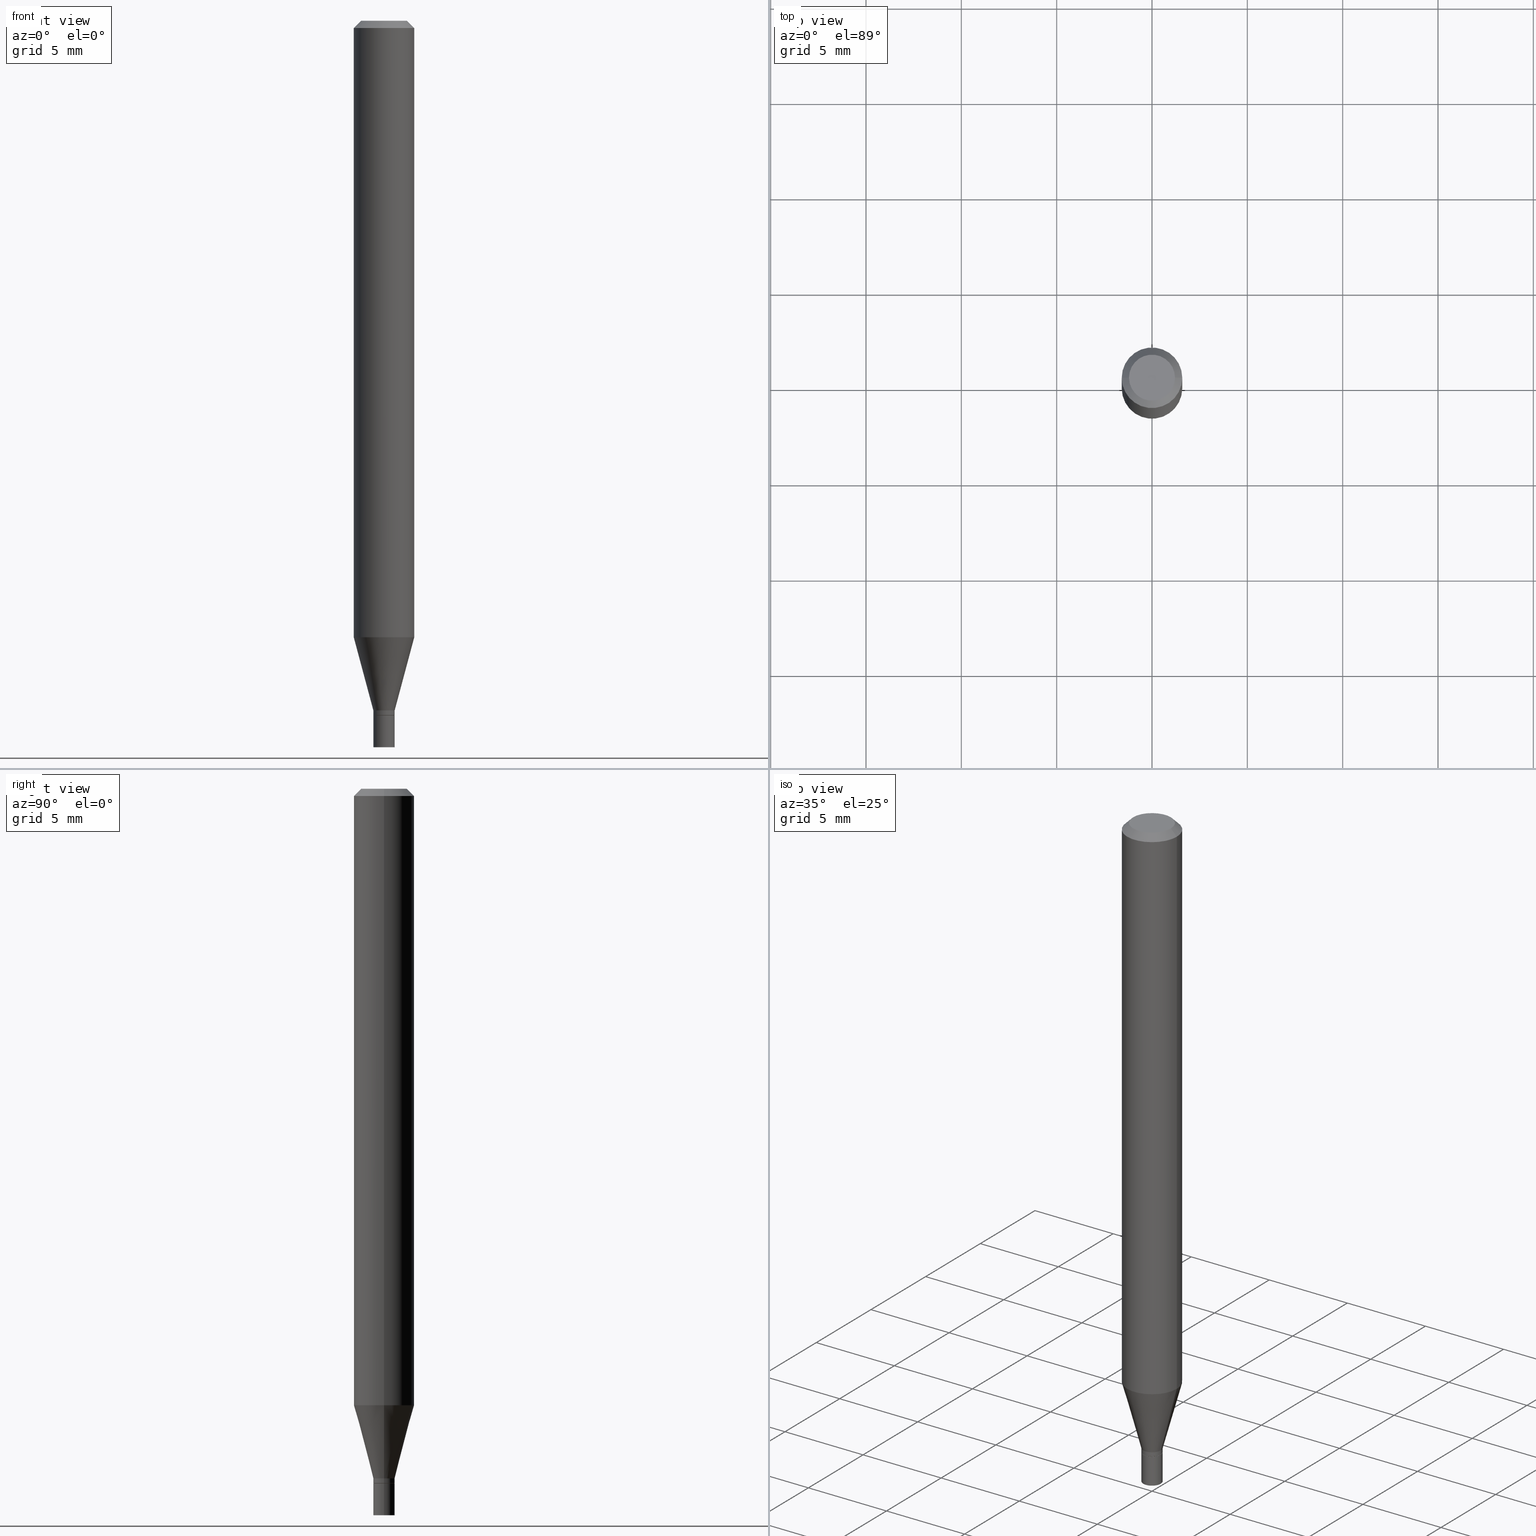
[diagram: canonical four-view strip — front | top / right | iso, engineering-drawing reading convention]
A machine part, canonical four-view strip (front | top / right | iso — engineering-drawing reading convention). The complete STEP part file that produces these views, byte-faithful:
ISO-10303-21;
HEADER;
FILE_DESCRIPTION (( 'STEP AP203' ),
    '1' );
FILE_NAME ('00411.STEP',
    '2024-03-19T21:12:06',
    ( '' ),
    ( '' ),
    'SwSTEP 2.0',
    'SolidWorks 2023',
    '' );
FILE_SCHEMA (( 'CONFIG_CONTROL_DESIGN' ));
ENDSEC;

DATA;
#1 = EDGE_LOOP ( 'NONE', ( #235, #85, #312, #355 ) ) ;
#2 = VECTOR ( 'NONE', #23, 39.37007874015748143 ) ;
#3 = PERSON_AND_ORGANIZATION ( #267, #266 ) ;
#4 = LOCAL_TIME ( 17, 12, 6.000000000000000000, #320 ) ;
#5 = ORIENTED_EDGE ( 'NONE', *, *, #73, .F. ) ;
#6 = DIRECTION ( 'NONE',  ( -2.445468806185136597E-29, 3.491481338843145583E-15, 1.000000000000000000 ) ) ;
#7 = CARTESIAN_POINT ( 'NONE',  ( 3.482347580007634944E-29, -4.971869426512640168E-15, -1.424000000000000155 ) ) ;
#8 = CARTESIAN_POINT ( 'NONE',  ( 3.482347580007634944E-29, -4.971869426512640168E-15, -1.424000000000000155 ) ) ;
#9 = ORIENTED_EDGE ( 'NONE', *, *, #431, .T. ) ;
#10 = AXIS2_PLACEMENT_3D ( 'NONE', #445, #214, #446 ) ;
#11 = CARTESIAN_POINT ( 'NONE',  ( 3.506802268069485929E-29, -5.006784239901070239E-15, -1.434000000000000163 ) ) ;
#12 = AXIS2_PLACEMENT_3D ( 'NONE', #258, #359, #212 ) ;
#13 = PLANE ( 'NONE',  #176 ) ;
#14 = DIRECTION ( 'NONE',  ( -2.445468806185136597E-29, 3.491481338843145583E-15, 1.000000000000000000 ) ) ;
#15 = CARTESIAN_POINT ( 'NONE',  ( -0.02199999999999992240, -4.815550024645417988E-15, -1.424000000000000155 ) ) ;
#16 = EDGE_CURVE ( 'NONE', #274, #440, #358, .T. ) ;
#17 = DIRECTION ( 'NONE',  ( -2.445468806185136597E-29, 3.491481338843145583E-15, 1.000000000000000000 ) ) ;
#18 = DIRECTION ( 'NONE',  ( 1.000000000000000000, -6.982962677686266711E-15, 0.000000000000000000 ) ) ;
#19 = CARTESIAN_POINT ( 'NONE',  ( 3.506802268069485929E-29, -5.006784239901070239E-15, -1.434000000000000163 ) ) ;
#20 = ORIENTED_EDGE ( 'NONE', *, *, #295, .F. ) ;
#21 =( CONVERSION_BASED_UNIT ( 'INCH', #163 ) LENGTH_UNIT ( ) NAMED_UNIT ( #46 ) );
#22 = FACE_OUTER_BOUND ( 'NONE', #194, .T. ) ;
#23 = DIRECTION ( 'NONE',  ( -2.445468806185136877E-29, 3.491481338843145188E-15, 1.000000000000000000 ) ) ;
#24 = CARTESIAN_POINT ( 'NONE',  ( 0.06250000000000000000, -4.888073874380388472E-16, -0.01499999999999999944 ) ) ;
#25 = PRODUCT_DEFINITION_SHAPE ( 'NONE', 'NONE',  #173 ) ;
#26 = ORIENTED_EDGE ( 'NONE', *, *, #110, .F. ) ;
#27 = APPROVAL_ROLE ( '' ) ;
#28 = ORIENTED_EDGE ( 'NONE', *, *, #262, .F. ) ;
#29 = APPROVAL ( #175, 'UNSPECIFIED' ) ;
#30 = APPLICATION_PROTOCOL_DEFINITION ( 'international standard', 'config_control_design', 1994, #139 ) ;
#31 = CONICAL_SURFACE ( 'NONE', #112, 0.02149999999999999481, 0.7853981633974739252 ) ;
#32 = COORDINATED_UNIVERSAL_TIME_OFFSET ( 5, 0, .BEHIND. ) ;
#33 = ORIENTED_EDGE ( 'NONE', *, *, #16, .F. ) ;
#34 = PERSON_AND_ORGANIZATION ( #267, #266 ) ;
#35 = APPROVAL_STATUS ( 'not_yet_approved' ) ;
#36 = ORIENTED_EDGE ( 'NONE', *, *, #110, .T. ) ;
#37 = EDGE_CURVE ( 'NONE', #440, #274, #190, .T. ) ;
#38 = CIRCLE ( 'NONE', #122, 0.06250000000000000000 ) ;
#39 = DIRECTION ( 'NONE',  ( 1.000000000000000000, -6.982962677686267499E-15, 4.884662768193073002E-29 ) ) ;
#40 = DIRECTION ( 'NONE',  ( -2.445468806185136597E-29, 3.491481338843145583E-15, 1.000000000000000000 ) ) ;
#41 = DIRECTION ( 'NONE',  ( -2.445468806185136597E-29, 3.491481338843145583E-15, 1.000000000000000000 ) ) ;
#42 = AXIS2_PLACEMENT_3D ( 'NONE', #223, #40, #111 ) ;
#43 = CARTESIAN_POINT ( 'NONE',  ( -0.02199999999999999872, -4.965683722215672817E-15, -1.434000000000000163 ) ) ;
#44 = ORIENTED_EDGE ( 'NONE', *, *, #435, .T. ) ;
#45 = DIRECTION ( 'NONE',  ( 1.000000000000000000, -6.982962677686266711E-15, 0.000000000000000000 ) ) ;
#46 = DIMENSIONAL_EXPONENTS ( 1.000000000000000000, 0.000000000000000000, 0.000000000000000000, 0.000000000000000000, 0.000000000000000000, 0.000000000000000000, 0.000000000000000000 ) ;
#47 = DIRECTION ( 'NONE',  ( 1.000000000000000000, -6.982962677686266711E-15, 0.000000000000000000 ) ) ;
#48 = CARTESIAN_POINT ( 'NONE',  ( -3.223020679335594837E-45, 4.601619341103081537E-31, 1.317956160873471783E-16 ) ) ;
#49 = VECTOR ( 'NONE', #226, 39.37007874015748854 ) ;
#50 = CC_DESIGN_APPROVAL ( #128, ( #173 ) ) ;
#51 = ADVANCED_BREP_SHAPE_REPRESENTATION ( '00411', ( #132, #447, #12 ), #441 ) ;
#52 = CARTESIAN_POINT ( 'NONE',  ( 1.536251789091328911E-16, 0.02199999999999499231, -1.434000000000000163 ) ) ;
#53 = EDGE_LOOP ( 'NONE', ( #125, #145, #94, #135 ) ) ;
#54 = EDGE_CURVE ( 'NONE', #318, #278, #335, .T. ) ;
#55 = DIRECTION ( 'NONE',  ( -2.445468806185136877E-29, 3.491481338843145188E-15, 1.000000000000000000 ) ) ;
#56 = DIRECTION ( 'NONE',  ( 1.000000000000000000, -6.982962677686265922E-15, 4.876176775795935793E-29 ) ) ;
#57 = PLANE ( 'NONE',  #409 ) ;
#58 = CYLINDRICAL_SURFACE ( 'NONE', #63, 0.02199999999999999872 ) ;
#59 = AXIS2_PLACEMENT_3D ( 'NONE', #48, #133, #127 ) ;
#60 = EDGE_CURVE ( 'NONE', #440, #245, #91, .T. ) ;
#61 = COORDINATED_UNIVERSAL_TIME_OFFSET ( 5, 0, .BEHIND. ) ;
#62 = PERSON_AND_ORGANIZATION ( #267, #266 ) ;
#63 = AXIS2_PLACEMENT_3D ( 'NONE', #126, #84, #286 ) ;
#64 = PERSON_AND_ORGANIZATION_ROLE ( 'design_supplier' ) ;
#65 = CALENDAR_DATE ( 2024, 19, 3 ) ;
#66 = CC_DESIGN_PERSON_AND_ORGANIZATION_ASSIGNMENT ( #289, #184, ( #173 ) ) ;
#67 = CLOSED_SHELL ( 'NONE', ( #121, #364, #423, #369 ) ) ;
#68 = ORIENTED_EDGE ( 'NONE', *, *, #216, .T. ) ;
#69 = LOCAL_TIME ( 17, 12, 6.000000000000000000, #32 ) ;
#70 = DIRECTION ( 'NONE',  ( -2.445468806185136597E-29, 3.491481338843145583E-15, 1.000000000000000000 ) ) ;
#71 = EDGE_LOOP ( 'NONE', ( #171, #333 ) ) ;
#72 = EDGE_CURVE ( 'NONE', #240, #356, #218, .T. ) ;
#73 = EDGE_CURVE ( 'NONE', #107, #240, #206, .T. ) ;
#74 = CARTESIAN_POINT ( 'NONE',  ( 3.506802268069485929E-29, -5.006784239901070239E-15, -1.434000000000000163 ) ) ;
#75 = VERTEX_POINT ( 'NONE', #456 ) ;
#76 = DIRECTION ( 'NONE',  ( -2.445468806185136597E-29, 3.491481338843145583E-15, 1.000000000000000000 ) ) ;
#77 = CARTESIAN_POINT ( 'NONE',  ( 0.04749999999999999362, -4.035134999187576158E-16, 1.317956160873497667E-16 ) ) ;
#78 = CIRCLE ( 'NONE', #352, 0.02199999999999999872 ) ;
#79 = LINE ( 'NONE', #264, #161 ) ;
#80 = AXIS2_PLACEMENT_3D ( 'NONE', #228, #41, #189 ) ;
#81 = FACE_OUTER_BOUND ( 'NONE', #373, .T. ) ;
#82 = VERTEX_POINT ( 'NONE', #247 ) ;
#83 = CARTESIAN_POINT ( 'NONE',  ( 3.506802268069485929E-29, -5.006784239901070239E-15, -1.434000000000000163 ) ) ;
#84 = DIRECTION ( 'NONE',  ( -2.445468806185136597E-29, 3.491481338843145583E-15, 1.000000000000000000 ) ) ;
#85 = ORIENTED_EDGE ( 'NONE', *, *, #37, .T. ) ;
#86 = VECTOR ( 'NONE', #417, 39.37007874015748143 ) ;
#87 = CIRCLE ( 'NONE', #384, 0.04749999999999999362 ) ;
#88 = DIRECTION ( 'NONE',  ( 1.000000000000000000, -6.982962677686245411E-15, 0.000000000000000000 ) ) ;
#89 = CIRCLE ( 'NONE', #219, 0.02199999999999992240 ) ;
#90 = CC_DESIGN_PERSON_AND_ORGANIZATION_ASSIGNMENT ( #34, #102, ( #179 ) ) ;
#91 = LINE ( 'NONE', #422, #86 ) ;
#92 = DIRECTION ( 'NONE',  ( -2.445468806185136597E-29, 3.491481338843145583E-15, 1.000000000000000000 ) ) ;
#93 = FACE_OUTER_BOUND ( 'NONE', #265, .T. ) ;
#94 = ORIENTED_EDGE ( 'NONE', *, *, #402, .T. ) ;
#95 = DIRECTION ( 'NONE',  ( -2.445468806185136597E-29, 3.491481338843145583E-15, 1.000000000000000000 ) ) ;
#96 = CARTESIAN_POINT ( 'NONE',  ( -0.02199999999999992240, -4.848719097364427345E-15, -1.433500000000000218 ) ) ;
#97 = EDGE_CURVE ( 'NONE', #278, #466, #387, .T. ) ;
#98 = VECTOR ( 'NONE', #370, 39.37007874015748854 ) ;
#99 = SECURITY_CLASSIFICATION_LEVEL ( 'unclassified' ) ;
#100 = DATE_AND_TIME ( #144, #328 ) ;
#101 = ADVANCED_FACE ( 'NONE', ( #170 ), #57, .F. ) ;
#102 = PERSON_AND_ORGANIZATION_ROLE ( 'design_owner' ) ;
#103 = AXIS2_PLACEMENT_3D ( 'NONE', #450, #157, #120 ) ;
#104 = CIRCLE ( 'NONE', #336, 0.02199999999999999872 ) ;
#105 = APPROVAL_STATUS ( 'not_yet_approved' ) ;
#106 = EDGE_LOOP ( 'NONE', ( #248, #166, #362, #26 ) ) ;
#107 = VERTEX_POINT ( 'NONE', #313 ) ;
#108 = APPROVAL_DATE_TIME ( #217, #128 ) ;
#109 = CARTESIAN_POINT ( 'NONE',  ( -0.02199999999999992240, -4.407799809211612796E-15, -1.424000000000000155 ) ) ;
#110 = EDGE_CURVE ( 'NONE', #278, #318, #140, .T. ) ;
#111 = DIRECTION ( 'NONE',  ( 1.000000000000000000, -6.982962677686266711E-15, 4.876176775795935793E-29 ) ) ;
#112 = AXIS2_PLACEMENT_3D ( 'NONE', #74, #70, #45 ) ;
#113 = CARTESIAN_POINT ( 'NONE',  ( 3.505579533666394249E-29, -5.005038499231650313E-15, -1.433500000000000218 ) ) ;
#114 = CIRCLE ( 'NONE', #59, 0.04749999999999999362 ) ;
#115 = DIRECTION ( 'NONE',  ( 1.000000000000000000, -6.982962677686245411E-15, 0.000000000000000000 ) ) ;
#116 = ORIENTED_EDGE ( 'NONE', *, *, #211, .T. ) ;
#117 = CARTESIAN_POINT ( 'NONE',  ( 3.576687321579069994E-29, -5.368277968210015545E-15, -1.500000000000000222 ) ) ;
#118 = ORIENTED_EDGE ( 'NONE', *, *, #345, .T. ) ;
#119 = DIRECTION ( 'NONE',  ( 1.000000000000000000, -6.982962677686269866E-15, 0.000000000000000000 ) ) ;
#120 = DIRECTION ( 'NONE',  ( -1.000000000000000000, 6.982962677686266711E-15, 0.000000000000000000 ) ) ;
#121 = ADVANCED_FACE ( 'NONE', ( #246 ), #389, .T. ) ;
#122 = AXIS2_PLACEMENT_3D ( 'NONE', #305, #448, #299 ) ;
#123 = DIRECTION ( 'NONE',  ( -1.000000000000000000, 6.982962677686265922E-15, -4.876176775795935793E-29 ) ) ;
#124 = CIRCLE ( 'NONE', #376, 0.02149999999999999481 ) ;
#125 = ORIENTED_EDGE ( 'NONE', *, *, #465, .F. ) ;
#126 = CARTESIAN_POINT ( 'NONE',  ( 0.000000000000000000, 0.000000000000000000, 0.000000000000000000 ) ) ;
#127 = DIRECTION ( 'NONE',  ( 1.000000000000000000, -6.982962677686267499E-15, 4.884662768193073002E-29 ) ) ;
#128 = APPROVAL ( #35, 'UNSPECIFIED' ) ;
#129 = ORIENTED_EDGE ( 'NONE', *, *, #73, .T. ) ;
#130 =( LENGTH_UNIT ( ) NAMED_UNIT ( * ) SI_UNIT ( $, .METRE. ) );
#131 = VECTOR ( 'NONE', #341, 39.37007874015748143 ) ;
#132 = MANIFOLD_SOLID_BREP ( 'Body-Move/Copy2[1]', #67 ) ;
#133 = DIRECTION ( 'NONE',  ( -2.445468806185136597E-29, 3.491481338843145583E-15, 1.000000000000000000 ) ) ;
#134 = CYLINDRICAL_SURFACE ( 'NONE', #152, 0.06250000000000000000 ) ;
#135 = ORIENTED_EDGE ( 'NONE', *, *, #444, .F. ) ;
#136 = CARTESIAN_POINT ( 'NONE',  ( -0.06250000000000000000, -1.804166302005195836E-15, -0.01499999999999999944 ) ) ;
#137 = ADVANCED_FACE ( 'NONE', ( #22 ), #134, .T. ) ;
#138 = PERSON_AND_ORGANIZATION ( #267, #266 ) ;
#139 = APPLICATION_CONTEXT ( 'configuration controlled 3d designs of mechanical parts and assemblies' ) ;
#140 = CIRCLE ( 'NONE', #201, 0.06250000000000000000 ) ;
#141 = SECURITY_CLASSIFICATION ( '', '', #99 ) ;
#142 = DATE_AND_TIME ( #324, #360 ) ;
#143 = ADVANCED_FACE ( 'NONE', ( #81 ), #234, .T. ) ;
#144 = CALENDAR_DATE ( 2024, 19, 3 ) ;
#145 = ORIENTED_EDGE ( 'NONE', *, *, #383, .T. ) ;
#146 = VERTEX_POINT ( 'NONE', #77 ) ;
#147 = CARTESIAN_POINT ( 'NONE',  ( 0.02199999999999992240, -5.125494605421737215E-15, -1.424000000000000155 ) ) ;
#148 = DIRECTION ( 'NONE',  ( -2.445468806185136597E-29, 3.491481338843145583E-15, 1.000000000000000000 ) ) ;
#149 = DIRECTION ( 'NONE',  ( -2.445468806185136597E-29, 3.491481338843145583E-15, 1.000000000000000000 ) ) ;
#150 = ORIENTED_EDGE ( 'NONE', *, *, #262, .T. ) ;
#151 = DIRECTION ( 'NONE',  ( -2.445468806185136597E-29, 3.491481338843145583E-15, 1.000000000000000000 ) ) ;
#152 = AXIS2_PLACEMENT_3D ( 'NONE', #250, #14, #281 ) ;
#153 = VECTOR ( 'NONE', #334, 39.37007874015748143 ) ;
#154 = CC_DESIGN_APPROVAL ( #459, ( #141 ) ) ;
#155 = CARTESIAN_POINT ( 'NONE',  ( 0.02199999999999999872, -5.160409418810168075E-15, -1.434000000000000163 ) ) ;
#156 = LINE ( 'NONE', #229, #428 ) ;
#157 = DIRECTION ( 'NONE',  ( 2.445468806185136597E-29, -3.491481338843145583E-15, -1.000000000000000000 ) ) ;
#158 = ADVANCED_FACE ( 'NONE', ( #197 ), #263, .T. ) ;
#159 = CARTESIAN_POINT ( 'NONE',  ( -3.223020679335594837E-45, 4.601619341103081537E-31, 1.317956160873471783E-16 ) ) ;
#160 = CARTESIAN_POINT ( 'NONE',  ( -0.04749999999999999362, 3.578768372314212971E-16, 1.317956160873447624E-16 ) ) ;
#161 = VECTOR ( 'NONE', #301, 39.37007874015748143 ) ;
#162 = FACE_OUTER_BOUND ( 'NONE', #227, .T. ) ;
#163 = LENGTH_MEASURE_WITH_UNIT ( LENGTH_MEASURE( 0.02539999999999999897 ), #130 );
#164 = CARTESIAN_POINT ( 'NONE',  ( 3.506802268069485929E-29, -5.006784239901070239E-15, -1.434000000000000163 ) ) ;
#165 = LINE ( 'NONE', #208, #224 ) ;
#166 = ORIENTED_EDGE ( 'NONE', *, *, #391, .T. ) ;
#167 = DIRECTION ( 'NONE',  ( 2.445468806185136597E-29, -3.491481338843145583E-15, -1.000000000000000000 ) ) ;
#168 = DIRECTION ( 'NONE',  ( 1.000000000000000000, -6.982962677686265922E-15, 4.876176775795936353E-29 ) ) ;
#169 = CONICAL_SURFACE ( 'NONE', #261, 0.02199999999999992240, 0.2617993877991498519 ) ;
#170 = FACE_OUTER_BOUND ( 'NONE', #294, .T. ) ;
#171 = ORIENTED_EDGE ( 'NONE', *, *, #340, .F. ) ;
#172 =( NAMED_UNIT ( * ) PLANE_ANGLE_UNIT ( ) SI_UNIT ( $, .RADIAN. ) );
#173 = PRODUCT_DEFINITION ( 'UNKNOWN', '', #386, #372 ) ;
#174 = MECHANICAL_CONTEXT ( 'NONE', #297, 'mechanical' ) ;
#175 = APPROVAL_STATUS ( 'not_yet_approved' ) ;
#176 = AXIS2_PLACEMENT_3D ( 'NONE', #332, #306, #123 ) ;
#177 = SHAPE_DEFINITION_REPRESENTATION ( #25, #51 ) ;
#178 = DIRECTION ( 'NONE',  ( -2.445468806185136597E-29, 3.491481338843145583E-15, 1.000000000000000000 ) ) ;
#179 = PRODUCT ( '00411', '00411', '', ( #174 ) ) ;
#180 = ORIENTED_EDGE ( 'NONE', *, *, #269, .T. ) ;
#181 = ORIENTED_EDGE ( 'NONE', *, *, #279, .T. ) ;
#182 = APPROVAL_DATE_TIME ( #100, #459 ) ;
#183 = EDGE_LOOP ( 'NONE', ( #118, #311, #33, #28 ) ) ;
#184 = PERSON_AND_ORGANIZATION_ROLE ( 'creator' ) ;
#185 = EDGE_CURVE ( 'NONE', #75, #245, #327, .T. ) ;
#186 = CONICAL_SURFACE ( 'NONE', #277, 0.06250000000000000000, 0.7853981633974439491 ) ;
#187 = VERTEX_POINT ( 'NONE', #160 ) ;
#188 = DIRECTION ( 'NONE',  ( 1.000000000000000000, -6.982962677686266711E-15, 0.000000000000000000 ) ) ;
#189 = DIRECTION ( 'NONE',  ( 1.000000000000000000, -6.982962677686269866E-15, 0.000000000000000000 ) ) ;
#190 = CIRCLE ( 'NONE', #457, 0.02199999999999992240 ) ;
#191 = CIRCLE ( 'NONE', #323, 0.02149999999999999481 ) ;
#192 = LINE ( 'NONE', #15, #49 ) ;
#193 = FACE_OUTER_BOUND ( 'NONE', #53, .T. ) ;
#194 = EDGE_LOOP ( 'NONE', ( #260, #36, #44, #344 ) ) ;
#195 = DIRECTION ( 'NONE',  ( 1.000000000000000000, -6.982962677686262766E-15, 0.000000000000000000 ) ) ;
#196 = CARTESIAN_POINT ( 'NONE',  ( -0.06250000000000001388, -4.000049593777807603E-15, -1.272851942293460548 ) ) ;
#197 = FACE_OUTER_BOUND ( 'NONE', #329, .T. ) ;
#198 = LINE ( 'NONE', #455, #131 ) ;
#199 = ADVANCED_FACE ( 'NONE', ( #193 ), #315, .T. ) ;
#200 = FACE_OUTER_BOUND ( 'NONE', #1, .T. ) ;
#201 = AXIS2_PLACEMENT_3D ( 'NONE', #347, #92, #242 ) ;
#202 = PLANE ( 'NONE',  #353 ) ;
#203 = VECTOR ( 'NONE', #349, 39.37007874015748143 ) ;
#204 = CARTESIAN_POINT ( 'NONE',  ( 0.06250000000000000000, -4.364351673553916694E-16, 3.047610484872459871E-30 ) ) ;
#205 = ORIENTED_EDGE ( 'NONE', *, *, #340, .T. ) ;
#206 = LINE ( 'NONE', #351, #2 ) ;
#207 = ADVANCED_FACE ( 'NONE', ( #200 ), #442, .T. ) ;
#208 = CARTESIAN_POINT ( 'NONE',  ( 0.02199999999999992240, -1.536251789090973184E-16, 1.072758890675101902E-30 ) ) ;
#209 = DIRECTION ( 'NONE',  ( -2.445468806185136597E-29, 3.491481338843145583E-15, 1.000000000000000000 ) ) ;
#210 = LOCAL_TIME ( 17, 12, 6.000000000000000000, #61 ) ;
#211 = EDGE_CURVE ( 'NONE', #466, #371, #38, .T. ) ;
#212 = DIRECTION ( 'NONE',  ( 1.000000000000000000, 0.000000000000000000, 0.000000000000000000 ) ) ;
#213 = DATE_TIME_ROLE ( 'classification_date' ) ;
#214 = DIRECTION ( 'NONE',  ( -2.445468806185136597E-29, 3.491481338843145583E-15, 1.000000000000000000 ) ) ;
#215 = ADVANCED_FACE ( 'NONE', ( #339 ), #307, .T. ) ;
#216 = EDGE_CURVE ( 'NONE', #356, #240, #78, .T. ) ;
#217 = DATE_AND_TIME ( #396, #210 ) ;
#218 = CIRCLE ( 'NONE', #241, 0.02199999999999999872 ) ;
#219 = AXIS2_PLACEMENT_3D ( 'NONE', #416, #17, #249 ) ;
#220 = PERSON_AND_ORGANIZATION ( #267, #266 ) ;
#221 = COORDINATED_UNIVERSAL_TIME_OFFSET ( 5, 0, .BEHIND. ) ;
#222 = ORIENTED_EDGE ( 'NONE', *, *, #97, .T. ) ;
#223 = CARTESIAN_POINT ( 'NONE',  ( 0.000000000000000000, 0.000000000000000000, 0.000000000000000000 ) ) ;
#224 = VECTOR ( 'NONE', #354, 39.37007874015748143 ) ;
#225 = CARTESIAN_POINT ( 'NONE',  ( 3.505579533666394249E-29, -5.005038499231650313E-15, -1.433500000000000218 ) ) ;
#226 = DIRECTION ( 'NONE',  ( -0.2588190451025211281, 5.211531920934547886E-15, 0.9659258262890679791 ) ) ;
#227 = EDGE_LOOP ( 'NONE', ( #366, #20, #401, #116 ) ) ;
#228 = CARTESIAN_POINT ( 'NONE',  ( 3.482347580007634944E-29, -4.971869426512640168E-15, -1.424000000000000155 ) ) ;
#229 = CARTESIAN_POINT ( 'NONE',  ( 0.02199999999999999872, -1.536251789090978361E-16, 1.072758890675105930E-30 ) ) ;
#230 = AXIS2_PLACEMENT_3D ( 'NONE', #225, #300, #437 ) ;
#231 = AXIS2_PLACEMENT_3D ( 'NONE', #244, #310, #283 ) ;
#232 = LINE ( 'NONE', #147, #98 ) ;
#233 = DIRECTION ( 'NONE',  ( 1.000000000000000000, -6.982962677686269866E-15, 0.000000000000000000 ) ) ;
#234 = CYLINDRICAL_SURFACE ( 'NONE', #253, 0.02199999999999992240 ) ;
#235 = ORIENTED_EDGE ( 'NONE', *, *, #60, .F. ) ;
#236 = CARTESIAN_POINT ( 'NONE',  ( 0.02199999999999992240, -5.158663678140746572E-15, -1.433500000000000218 ) ) ;
#237 = EDGE_CURVE ( 'NONE', #75, #318, #232, .T. ) ;
#238 = ORIENTED_EDGE ( 'NONE', *, *, #237, .F. ) ;
#239 = CARTESIAN_POINT ( 'NONE',  ( 3.506802268069485929E-29, -5.006784239901070239E-15, -1.434000000000000163 ) ) ;
#240 = VERTEX_POINT ( 'NONE', #43 ) ;
#241 = AXIS2_PLACEMENT_3D ( 'NONE', #164, #209, #88 ) ;
#242 = DIRECTION ( 'NONE',  ( 1.000000000000000000, -6.982962677686262766E-15, 0.000000000000000000 ) ) ;
#243 = EDGE_LOOP ( 'NONE', ( #365, #9, #150, #434 ) ) ;
#244 = CARTESIAN_POINT ( 'NONE',  ( 3.668203209277705088E-31, -5.237222008264718399E-17, -0.01499999999999999944 ) ) ;
#245 = VERTEX_POINT ( 'NONE', #109 ) ;
#246 = FACE_OUTER_BOUND ( 'NONE', #326, .T. ) ;
#247 = CARTESIAN_POINT ( 'NONE',  ( 0.02199999999999999872, -5.390847187173816013E-15, -1.500000000000000222 ) ) ;
#248 = ORIENTED_EDGE ( 'NONE', *, *, #279, .F. ) ;
#249 = DIRECTION ( 'NONE',  ( 1.000000000000000000, -6.982962677686269866E-15, 0.000000000000000000 ) ) ;
#250 = CARTESIAN_POINT ( 'NONE',  ( 0.000000000000000000, 0.000000000000000000, 0.000000000000000000 ) ) ;
#251 = VERTEX_POINT ( 'NONE', #436 ) ;
#252 = DIRECTION ( 'NONE',  ( 2.438088387897960049E-29, -3.491481338843145188E-15, -1.000000000000000000 ) ) ;
#253 = AXIS2_PLACEMENT_3D ( 'NONE', #411, #342, #378 ) ;
#254 = ORIENTED_EDGE ( 'NONE', *, *, #54, .F. ) ;
#255 = COORDINATED_UNIVERSAL_TIME_OFFSET ( 5, 0, .BEHIND. ) ;
#256 = CC_DESIGN_DATE_AND_TIME_ASSIGNMENT ( #142, #213, ( #141 ) ) ;
#257 = PERSON_AND_ORGANIZATION ( #267, #266 ) ;
#258 = CARTESIAN_POINT ( 'NONE',  ( 0.000000000000000000, 0.000000000000000000, 0.000000000000000000 ) ) ;
#259 = AXIS2_PLACEMENT_3D ( 'NONE', #350, #95, #168 ) ;
#260 = ORIENTED_EDGE ( 'NONE', *, *, #97, .F. ) ;
#261 = AXIS2_PLACEMENT_3D ( 'NONE', #8, #149, #119 ) ;
#262 = EDGE_CURVE ( 'NONE', #325, #274, #79, .T. ) ;
#263 = CYLINDRICAL_SURFACE ( 'NONE', #42, 0.06250000000000000000 ) ;
#264 = CARTESIAN_POINT ( 'NONE',  ( 0.02149999999999999481, -5.156917937471325068E-15, -1.434000000000000163 ) ) ;
#265 = EDGE_LOOP ( 'NONE', ( #68, #426 ) ) ;
#266 = ORGANIZATION ( 'UNSPECIFIED', 'UNSPECIFIED', '' ) ;
#267 = PERSON ( 'UNSPECIFIED', 'UNSPECIFIED', 'UNSPECIFIED', ('UNSPECIFIED'), ('UNSPECIFIED'), ('UNSPECIFIED') ) ;
#268 = ORIENTED_EDGE ( 'NONE', *, *, #345, .F. ) ;
#269 = EDGE_CURVE ( 'NONE', #82, #356, #156, .T. ) ;
#270 = FACE_OUTER_BOUND ( 'NONE', #451, .T. ) ;
#271 = ORIENTED_EDGE ( 'NONE', *, *, #72, .F. ) ;
#272 = CC_DESIGN_PERSON_AND_ORGANIZATION_ASSIGNMENT ( #3, #464, ( #386 ) ) ;
#273 = DIRECTION ( 'NONE',  ( -2.438088387897960049E-29, 3.491481338843145188E-15, 1.000000000000000000 ) ) ;
#274 = VERTEX_POINT ( 'NONE', #236 ) ;
#275 = CARTESIAN_POINT ( 'NONE',  ( -0.02149999999999999481, -4.854017551712648958E-15, -1.434000000000000163 ) ) ;
#276 = ADVANCED_FACE ( 'NONE', ( #377 ), #31, .T. ) ;
#277 = AXIS2_PLACEMENT_3D ( 'NONE', #388, #167, #317 ) ;
#278 = VERTEX_POINT ( 'NONE', #196 ) ;
#279 = EDGE_CURVE ( 'NONE', #245, #278, #192, .T. ) ;
#280 = FACE_OUTER_BOUND ( 'NONE', #106, .T. ) ;
#281 = DIRECTION ( 'NONE',  ( 1.000000000000000000, -6.982962677686266711E-15, 4.876176775795935793E-29 ) ) ;
#282 = EDGE_LOOP ( 'NONE', ( #5, #420, #180, #271 ) ) ;
#283 = DIRECTION ( 'NONE',  ( 1.000000000000000000, -6.982962677686266711E-15, 0.000000000000000000 ) ) ;
#284 = ORIENTED_EDGE ( 'NONE', *, *, #16, .T. ) ;
#285 = CONICAL_SURFACE ( 'NONE', #80, 0.02199999999999992240, 0.2617993877991498519 ) ;
#286 = DIRECTION ( 'NONE',  ( 1.000000000000000000, -6.982962677686265922E-15, 4.876176775795936353E-29 ) ) ;
#287 = ORIENTED_EDGE ( 'NONE', *, *, #435, .F. ) ;
#288 =( NAMED_UNIT ( * ) SI_UNIT ( $, .STERADIAN. ) SOLID_ANGLE_UNIT ( ) );
#289 = PERSON_AND_ORGANIZATION ( #267, #266 ) ;
#290 = CC_DESIGN_DATE_AND_TIME_ASSIGNMENT ( #429, #357, ( #173 ) ) ;
#291 = APPROVAL_PERSON_ORGANIZATION ( #62, #128, #398 ) ;
#292 = CALENDAR_DATE ( 2024, 19, 3 ) ;
#293 = ORIENTED_EDGE ( 'NONE', *, *, #465, .T. ) ;
#294 = EDGE_LOOP ( 'NONE', ( #268, #316 ) ) ;
#295 = EDGE_CURVE ( 'NONE', #187, #146, #87, .T. ) ;
#296 = PERSON_AND_ORGANIZATION_ROLE ( 'classification_officer' ) ;
#297 = APPLICATION_CONTEXT ( 'configuration controlled 3d designs of mechanical parts and assemblies' ) ;
#298 = UNCERTAINTY_MEASURE_WITH_UNIT (LENGTH_MEASURE( 1.000000000000000082E-05 ), #21, 'distance_accuracy_value', 'NONE');
#299 = DIRECTION ( 'NONE',  ( 1.000000000000000000, -6.982962677686266711E-15, 0.000000000000000000 ) ) ;
#300 = DIRECTION ( 'NONE',  ( -2.445468806185136597E-29, 3.491481338843145583E-15, 1.000000000000000000 ) ) ;
#301 = DIRECTION ( 'NONE',  ( 0.7071067811865656694, -2.468850131082446387E-15, 0.7071067811865294761 ) ) ;
#302 = ORIENTED_EDGE ( 'NONE', *, *, #402, .F. ) ;
#303 = ADVANCED_FACE ( 'NONE', ( #374 ), #13, .F. ) ;
#304 = FACE_OUTER_BOUND ( 'NONE', #71, .T. ) ;
#305 = CARTESIAN_POINT ( 'NONE',  ( 3.668203209277705088E-31, -5.237222008264718399E-17, -0.01499999999999999944 ) ) ;
#306 = DIRECTION ( 'NONE',  ( 2.438088387897960049E-29, -3.491481338843145188E-15, -1.000000000000000000 ) ) ;
#307 = CONICAL_SURFACE ( 'NONE', #322, 0.02149999999999999481, 0.7853981633974739252 ) ;
#308 = APPROVAL_PERSON_ORGANIZATION ( #363, #459, #430 ) ;
#309 = ADVANCED_FACE ( 'NONE', ( #280 ), #169, .T. ) ;
#310 = DIRECTION ( 'NONE',  ( -2.445468806185136597E-29, 3.491481338843145583E-15, 1.000000000000000000 ) ) ;
#311 = ORIENTED_EDGE ( 'NONE', *, *, #319, .T. ) ;
#312 = ORIENTED_EDGE ( 'NONE', *, *, #452, .T. ) ;
#313 = CARTESIAN_POINT ( 'NONE',  ( -0.02199999999999999872, -4.965683722215672817E-15, -1.500000000000000222 ) ) ;
#314 = PRODUCT_RELATED_PRODUCT_CATEGORY ( 'detail', '', ( #179 ) ) ;
#315 = CONICAL_SURFACE ( 'NONE', #103, 0.06250000000000000000, 0.7853981633974439491 ) ;
#316 = ORIENTED_EDGE ( 'NONE', *, *, #431, .F. ) ;
#317 = DIRECTION ( 'NONE',  ( -1.000000000000000000, 6.982962677686266711E-15, 0.000000000000000000 ) ) ;
#318 = VERTEX_POINT ( 'NONE', #407 ) ;
#319 = EDGE_CURVE ( 'NONE', #251, #440, #375, .T. ) ;
#320 = COORDINATED_UNIVERSAL_TIME_OFFSET ( 5, 0, .BEHIND. ) ;
#321 = APPROVAL_DATE_TIME ( #462, #29 ) ;
#322 = AXIS2_PLACEMENT_3D ( 'NONE', #83, #408, #188 ) ;
#323 = AXIS2_PLACEMENT_3D ( 'NONE', #11, #380, #47 ) ;
#324 = CALENDAR_DATE ( 2024, 19, 3 ) ;
#325 = VERTEX_POINT ( 'NONE', #412 ) ;
#326 = EDGE_LOOP ( 'NONE', ( #205, #129, #379, #415 ) ) ;
#327 = CIRCLE ( 'NONE', #449, 0.02199999999999992240 ) ;
#328 = LOCAL_TIME ( 17, 12, 6.000000000000000000, #221 ) ;
#329 = EDGE_LOOP ( 'NONE', ( #400, #222, #302, #287 ) ) ;
#330 = CARTESIAN_POINT ( 'NONE',  ( 3.506802268069485929E-29, -5.006784239901070239E-15, -1.434000000000000163 ) ) ;
#331 = CC_DESIGN_PERSON_AND_ORGANIZATION_ASSIGNMENT ( #138, #296, ( #141 ) ) ;
#332 = CARTESIAN_POINT ( 'NONE',  ( 3.316907271900976096E-16, 0.04749999999999999362, -9.994755555137580731E-17 ) ) ;
#333 = ORIENTED_EDGE ( 'NONE', *, *, #385, .F. ) ;
#334 = DIRECTION ( 'NONE',  ( -0.7071067811865656694, 7.493145998870420424E-15, 0.7071067811865294761 ) ) ;
#335 = CIRCLE ( 'NONE', #418, 0.06250000000000000000 ) ;
#336 = AXIS2_PLACEMENT_3D ( 'NONE', #439, #76, #115 ) ;
#337 = DIRECTION ( 'NONE',  ( 1.000000000000000000, -6.982962677686245411E-15, 0.000000000000000000 ) ) ;
#338 = EDGE_LOOP ( 'NONE', ( #381, #293 ) ) ;
#339 = FACE_OUTER_BOUND ( 'NONE', #183, .T. ) ;
#340 = EDGE_CURVE ( 'NONE', #82, #107, #104, .T. ) ;
#341 = DIRECTION ( 'NONE',  ( 0.7071067811865444641, -7.319954787623245001E-15, -0.7071067811865505703 ) ) ;
#342 = DIRECTION ( 'NONE',  ( -2.445468806185136597E-29, 3.491481338843145583E-15, 1.000000000000000000 ) ) ;
#343 = CIRCLE ( 'NONE', #231, 0.06250000000000000000 ) ;
#344 = ORIENTED_EDGE ( 'NONE', *, *, #211, .F. ) ;
#345 = EDGE_CURVE ( 'NONE', #325, #251, #191, .T. ) ;
#346 = ADVANCED_FACE ( 'NONE', ( #270 ), #285, .T. ) ;
#347 = CARTESIAN_POINT ( 'NONE',  ( 3.112719719770821642E-29, -4.444138803627870220E-15, -1.272851942293460548 ) ) ;
#348 = DIRECTION ( 'NONE',  ( -2.445468806185136877E-29, 3.491481338843145188E-15, 1.000000000000000000 ) ) ;
#349 = DIRECTION ( 'NONE',  ( -0.7071067811865444641, 2.468850131082224717E-15, -0.7071067811865505703 ) ) ;
#350 = CARTESIAN_POINT ( 'NONE',  ( 0.000000000000000000, 0.000000000000000000, 0.000000000000000000 ) ) ;
#351 = CARTESIAN_POINT ( 'NONE',  ( -0.02199999999999999872, 1.563194018672220318E-16, -1.082165719856079240E-30 ) ) ;
#352 = AXIS2_PLACEMENT_3D ( 'NONE', #330, #6, #337 ) ;
#353 = AXIS2_PLACEMENT_3D ( 'NONE', #52, #252, #453 ) ;
#354 = DIRECTION ( 'NONE',  ( -2.445468806185136877E-29, 3.491481338843145188E-15, 1.000000000000000000 ) ) ;
#355 = ORIENTED_EDGE ( 'NONE', *, *, #391, .F. ) ;
#356 = VERTEX_POINT ( 'NONE', #155 ) ;
#357 = DATE_TIME_ROLE ( 'creation_date' ) ;
#358 = CIRCLE ( 'NONE', #230, 0.02199999999999992240 ) ;
#359 = DIRECTION ( 'NONE',  ( 0.000000000000000000, 0.000000000000000000, 1.000000000000000000 ) ) ;
#360 = LOCAL_TIME ( 17, 12, 6.000000000000000000, #255 ) ;
#361 = APPROVAL_PERSON_ORGANIZATION ( #257, #29, #27 ) ;
#362 = ORIENTED_EDGE ( 'NONE', *, *, #237, .T. ) ;
#363 = PERSON_AND_ORGANIZATION ( #267, #266 ) ;
#364 = ADVANCED_FACE ( 'NONE', ( #304 ), #443, .F. ) ;
#365 = ORIENTED_EDGE ( 'NONE', *, *, #319, .F. ) ;
#366 = ORIENTED_EDGE ( 'NONE', *, *, #383, .F. ) ;
#367 = VECTOR ( 'NONE', #348, 39.37007874015748143 ) ;
#368 = ORIENTED_EDGE ( 'NONE', *, *, #185, .F. ) ;
#369 = ADVANCED_FACE ( 'NONE', ( #93 ), #202, .F. ) ;
#370 = DIRECTION ( 'NONE',  ( 0.2588190451025211281, 1.565188264969622954E-15, 0.9659258262890679791 ) ) ;
#371 = VERTEX_POINT ( 'NONE', #24 ) ;
#372 = DESIGN_CONTEXT ( 'detailed design', #139, 'design' ) ;
#373 = EDGE_LOOP ( 'NONE', ( #284, #406, #368, #460 ) ) ;
#374 = FACE_OUTER_BOUND ( 'NONE', #338, .T. ) ;
#375 = LINE ( 'NONE', #275, #153 ) ;
#376 = AXIS2_PLACEMENT_3D ( 'NONE', #239, #424, #18 ) ;
#377 = FACE_OUTER_BOUND ( 'NONE', #243, .T. ) ;
#378 = DIRECTION ( 'NONE',  ( 1.000000000000000000, -6.982962677686266711E-15, 4.876176775795934672E-29 ) ) ;
#379 = ORIENTED_EDGE ( 'NONE', *, *, #216, .F. ) ;
#380 = DIRECTION ( 'NONE',  ( -2.445468806185136597E-29, 3.491481338843145583E-15, 1.000000000000000000 ) ) ;
#381 = ORIENTED_EDGE ( 'NONE', *, *, #295, .T. ) ;
#382 = LINE ( 'NONE', #427, #203 ) ;
#383 = EDGE_CURVE ( 'NONE', #146, #371, #198, .T. ) ;
#384 = AXIS2_PLACEMENT_3D ( 'NONE', #159, #405, #39 ) ;
#385 = EDGE_CURVE ( 'NONE', #107, #82, #433, .T. ) ;
#386 = PRODUCT_DEFINITION_FORMATION_WITH_SPECIFIED_SOURCE ( 'ANY', '', #179, .NOT_KNOWN. ) ;
#387 = LINE ( 'NONE', #390, #367 ) ;
#388 = CARTESIAN_POINT ( 'NONE',  ( 3.668203209277705088E-31, -5.237222008264718399E-17, -0.01499999999999999944 ) ) ;
#389 = CYLINDRICAL_SURFACE ( 'NONE', #259, 0.02199999999999999872 ) ;
#390 = CARTESIAN_POINT ( 'NONE',  ( -0.06250000000000000000, 4.440892098500626162E-16, -3.074334431409316114E-30 ) ) ;
#391 = EDGE_CURVE ( 'NONE', #245, #75, #89, .T. ) ;
#392 = DIRECTION ( 'NONE',  ( 1.000000000000000000, -6.982962677686265922E-15, 4.876176775795935793E-29 ) ) ;
#393 = CC_DESIGN_SECURITY_CLASSIFICATION ( #141, ( #386 ) ) ;
#394 = DIRECTION ( 'NONE',  ( -2.445468806185136597E-29, 3.491481338843145583E-15, 1.000000000000000000 ) ) ;
#395 = ADVANCED_FACE ( 'NONE', ( #162 ), #186, .T. ) ;
#396 = CALENDAR_DATE ( 2024, 19, 3 ) ;
#397 = CLOSED_SHELL ( 'NONE', ( #143, #215, #199, #158, #346, #309, #137, #395, #303, #101, #276, #207 ) ) ;
#398 = APPROVAL_ROLE ( '' ) ;
#399 = AXIS2_PLACEMENT_3D ( 'NONE', #458, #394, #413 ) ;
#400 = ORIENTED_EDGE ( 'NONE', *, *, #54, .T. ) ;
#401 = ORIENTED_EDGE ( 'NONE', *, *, #444, .T. ) ;
#402 = EDGE_CURVE ( 'NONE', #371, #466, #343, .T. ) ;
#403 = DIRECTION ( 'NONE',  ( -2.445468806185136877E-29, 3.491481338843145188E-15, 1.000000000000000000 ) ) ;
#404 = DIRECTION ( 'NONE',  ( 1.000000000000000000, -6.982962677686269866E-15, 0.000000000000000000 ) ) ;
#405 = DIRECTION ( 'NONE',  ( -2.445468806185136597E-29, 3.491481338843145583E-15, 1.000000000000000000 ) ) ;
#406 = ORIENTED_EDGE ( 'NONE', *, *, #60, .T. ) ;
#407 = CARTESIAN_POINT ( 'NONE',  ( 0.06250000000000001388, -4.880573970983261100E-15, -1.272851942293460548 ) ) ;
#408 = DIRECTION ( 'NONE',  ( -2.445468806185136597E-29, 3.491481338843145583E-15, 1.000000000000000000 ) ) ;
#409 = AXIS2_PLACEMENT_3D ( 'NONE', #19, #425, #56 ) ;
#410 = VECTOR ( 'NONE', #55, 39.37007874015748143 ) ;
#411 = CARTESIAN_POINT ( 'NONE',  ( 0.000000000000000000, 0.000000000000000000, 0.000000000000000000 ) ) ;
#412 = CARTESIAN_POINT ( 'NONE',  ( 0.02149999999999999481, -5.156917937471325068E-15, -1.434000000000000163 ) ) ;
#413 = DIRECTION ( 'NONE',  ( 1.000000000000000000, -6.982962677686245411E-15, 0.000000000000000000 ) ) ;
#414 = CC_DESIGN_PERSON_AND_ORGANIZATION_ASSIGNMENT ( #220, #64, ( #386 ) ) ;
#415 = ORIENTED_EDGE ( 'NONE', *, *, #269, .F. ) ;
#416 = CARTESIAN_POINT ( 'NONE',  ( 3.482347580007634944E-29, -4.971869426512640168E-15, -1.424000000000000155 ) ) ;
#417 = DIRECTION ( 'NONE',  ( -2.445468806185136877E-29, 3.491481338843145188E-15, 1.000000000000000000 ) ) ;
#418 = AXIS2_PLACEMENT_3D ( 'NONE', #438, #178, #195 ) ;
#419 = AXIS2_PLACEMENT_3D ( 'NONE', #117, #273, #392 ) ;
#420 = ORIENTED_EDGE ( 'NONE', *, *, #385, .T. ) ;
#421 = APPLICATION_PROTOCOL_DEFINITION ( 'international standard', 'config_control_design', 1994, #297 ) ;
#422 = CARTESIAN_POINT ( 'NONE',  ( -0.02199999999999992240, 1.563194018672214895E-16, -1.082165719856075386E-30 ) ) ;
#423 = ADVANCED_FACE ( 'NONE', ( #454 ), #58, .T. ) ;
#424 = DIRECTION ( 'NONE',  ( -2.445468806185136597E-29, 3.491481338843145583E-15, 1.000000000000000000 ) ) ;
#425 = DIRECTION ( 'NONE',  ( -2.438088387897960049E-29, 3.491481338843145188E-15, 1.000000000000000000 ) ) ;
#426 = ORIENTED_EDGE ( 'NONE', *, *, #72, .T. ) ;
#427 = CARTESIAN_POINT ( 'NONE',  ( -0.06250000000000000000, 3.840629472727444916E-16, -0.01499999999999999944 ) ) ;
#428 = VECTOR ( 'NONE', #403, 39.37007874015748143 ) ;
#429 = DATE_AND_TIME ( #65, #69 ) ;
#430 = APPROVAL_ROLE ( '' ) ;
#431 = EDGE_CURVE ( 'NONE', #251, #325, #124, .T. ) ;
#432 = ORIENTED_EDGE ( 'NONE', *, *, #185, .T. ) ;
#433 = CIRCLE ( 'NONE', #399, 0.02199999999999999872 ) ;
#434 = ORIENTED_EDGE ( 'NONE', *, *, #37, .F. ) ;
#435 = EDGE_CURVE ( 'NONE', #318, #371, #461, .T. ) ;
#436 = CARTESIAN_POINT ( 'NONE',  ( -0.02149999999999999481, -4.851368324538538546E-15, -1.434000000000000163 ) ) ;
#437 = DIRECTION ( 'NONE',  ( 1.000000000000000000, -6.982962677686269866E-15, 0.000000000000000000 ) ) ;
#438 = CARTESIAN_POINT ( 'NONE',  ( 3.112719719770821642E-29, -4.444138803627870220E-15, -1.272851942293460548 ) ) ;
#439 = CARTESIAN_POINT ( 'NONE',  ( 3.668203209277704895E-29, -5.237222008264718177E-15, -1.500000000000000222 ) ) ;
#440 = VERTEX_POINT ( 'NONE', #96 ) ;
#441 =( GEOMETRIC_REPRESENTATION_CONTEXT ( 3 ) GLOBAL_UNCERTAINTY_ASSIGNED_CONTEXT ( ( #298 ) ) GLOBAL_UNIT_ASSIGNED_CONTEXT ( ( #21, #172, #288 ) ) REPRESENTATION_CONTEXT ( 'NONE', 'WORKASPACE' ) );
#442 = CYLINDRICAL_SURFACE ( 'NONE', #10, 0.02199999999999992240 ) ;
#443 = PLANE ( 'NONE',  #419 ) ;
#444 = EDGE_CURVE ( 'NONE', #187, #466, #382, .T. ) ;
#445 = CARTESIAN_POINT ( 'NONE',  ( 0.000000000000000000, 0.000000000000000000, 0.000000000000000000 ) ) ;
#446 = DIRECTION ( 'NONE',  ( 1.000000000000000000, -6.982962677686266711E-15, 4.876176775795934672E-29 ) ) ;
#447 = MANIFOLD_SOLID_BREP ( 'Body-Move/Copy2[2]', #397 ) ;
#448 = DIRECTION ( 'NONE',  ( -2.445468806185136597E-29, 3.491481338843145583E-15, 1.000000000000000000 ) ) ;
#449 = AXIS2_PLACEMENT_3D ( 'NONE', #7, #151, #233 ) ;
#450 = CARTESIAN_POINT ( 'NONE',  ( 3.668203209277705088E-31, -5.237222008264718399E-17, -0.01499999999999999944 ) ) ;
#451 = EDGE_LOOP ( 'NONE', ( #432, #181, #254, #238 ) ) ;
#452 = EDGE_CURVE ( 'NONE', #274, #75, #165, .T. ) ;
#453 = DIRECTION ( 'NONE',  ( -1.000000000000000000, 6.982962677686265922E-15, -4.876176775795935793E-29 ) ) ;
#454 = FACE_OUTER_BOUND ( 'NONE', #282, .T. ) ;
#455 = CARTESIAN_POINT ( 'NONE',  ( 0.06250000000000000000, -4.811533449433679005E-16, -0.01499999999999999944 ) ) ;
#456 = CARTESIAN_POINT ( 'NONE',  ( 0.02199999999999992240, -5.125494605421737215E-15, -1.424000000000000155 ) ) ;
#457 = AXIS2_PLACEMENT_3D ( 'NONE', #113, #148, #404 ) ;
#458 = CARTESIAN_POINT ( 'NONE',  ( 3.668203209277704895E-29, -5.237222008264718177E-15, -1.500000000000000222 ) ) ;
#459 = APPROVAL ( #105, 'UNSPECIFIED' ) ;
#460 = ORIENTED_EDGE ( 'NONE', *, *, #452, .F. ) ;
#461 = LINE ( 'NONE', #204, #410 ) ;
#462 = DATE_AND_TIME ( #292, #4 ) ;
#463 = CC_DESIGN_APPROVAL ( #29, ( #386 ) ) ;
#464 = PERSON_AND_ORGANIZATION_ROLE ( 'creator' ) ;
#465 = EDGE_CURVE ( 'NONE', #146, #187, #114, .T. ) ;
#466 = VERTEX_POINT ( 'NONE', #136 ) ;
ENDSEC;
END-ISO-10303-21;
